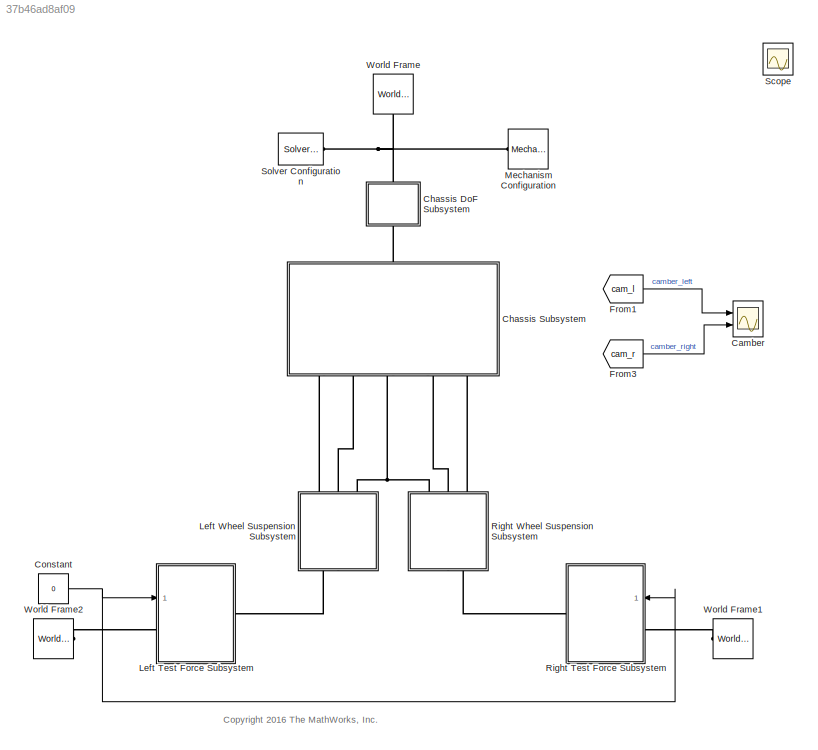
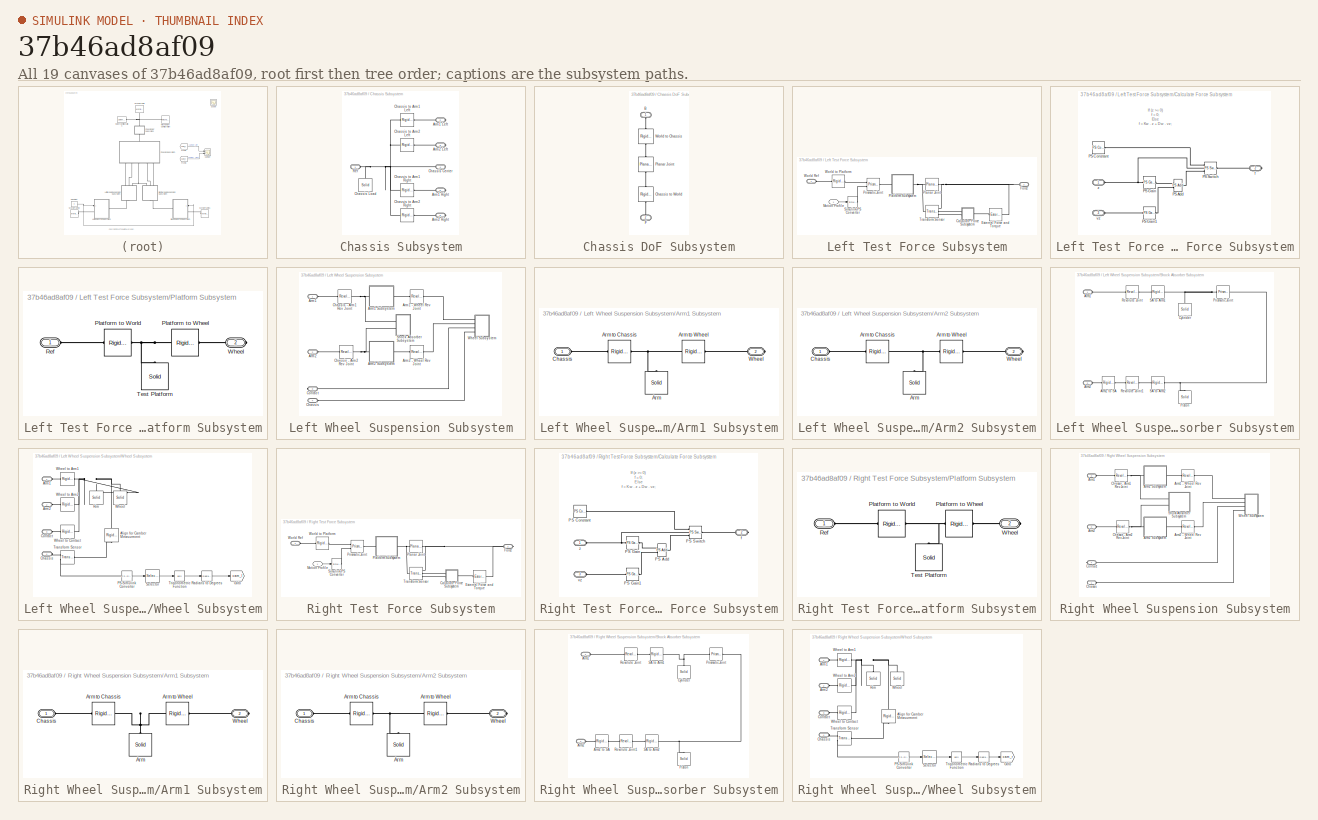
[diagram: thumbnail index - all 19 canvases of the model, root first then tree order]
MODEL slx_37b46ad8af09
KIND model
CONFIG AbsTol = auto
CONFIG FixedStep = auto
CONFIG MaxStep = auto
CONFIG MinStep = auto
CONFIG PreLoadFcn = suspension_optim_params\n\n
CONFIG RelTol = 1e-3
CONFIG SampleTimeConstraint = Unconstrained
CONFIG Solver = ode23t
CONFIG SolverMode = Auto
CONFIG SolverName = ode23t
CONFIG StartTime = 0.0
CONFIG StopTime = 3
BLOCK [Scope] Camber
  NumInputPorts = 2
  Ports = [2]
  ScopeSpecificationString = Simulink.scopes.TimeScopeBlockCfg('CurrentConfiguration', extmgr.ConfigurationSet(extmgr.Configuration('Core','General UI',true),extmgr.Configuration('Core','Source UI',true),extmgr.Configuration('Sources','WiredSimulink',true,'DataLoggingVariableName','ScopeData1'),extmgr.Configuration('Visuals','Time Domain',true,'SerializedDisplays',{struct('MinYLimReal','-0.45898','MaxYLimReal','4.13067','YLab...<+2031ch>
BLOCK [SubSystem] Chassis DoF Subsystem
  Ports = [0, 0, 0, 0, 0, 1, 1]
  RequestExecContextInheritance = off
  Variant = off
BLOCK [PMIOPort] Chassis DoF Subsystem/B
  Port = 1
  Side = Left
BLOCK [Reference] Chassis DoF Subsystem/Chassis to World  REF=sm_lib/Frames and
Transforms/Rigid
Transform
  Ports = [0, 0, 0, 0, 0, 1, 1]
  SourceBlock = sm_lib/Frames and\nTransforms/Rigid\nTransform
  SourceType = Rigid\nTransform
BLOCK [PMIOPort] Chassis DoF Subsystem/F
  Port = 2
  Side = Right
BLOCK [Reference] Chassis DoF Subsystem/Planar Joint  REF=sm_lib/Joints/Planar Joint
  Ports = [0, 0, 0, 0, 0, 1, 1]
  SourceBlock = sm_lib/Joints/Planar Joint
  SourceType = Planar Joint
BLOCK [Reference] Chassis DoF Subsystem/World to Chassis  REF=sm_lib/Frames and
Transforms/Rigid
Transform
  Ports = [0, 0, 0, 0, 0, 1, 1]
  SourceBlock = sm_lib/Frames and\nTransforms/Rigid\nTransform
  SourceType = Rigid\nTransform
BLOCK [SubSystem] Chassis Subsystem
  Ports = [0, 0, 0, 0, 0, 1, 5]
  RequestExecContextInheritance = off
  Variant = off
BLOCK [PMIOPort] Chassis Subsystem/Arm1 Left
  Port = 2
  Side = Right
BLOCK [PMIOPort] Chassis Subsystem/Arm1 Right
  Port = 5
  Side = Right
BLOCK [PMIOPort] Chassis Subsystem/Arm2 Left
  Port = 3
  Side = Right
BLOCK [PMIOPort] Chassis Subsystem/Arm2 Right
  Port = 6
  Side = Right
BLOCK [PMIOPort] Chassis Subsystem/Chassis Center
  Port = 4
  Side = Right
BLOCK [Reference] Chassis Subsystem/Chassis Load  REF=sm_lib/Body Elements/Solid
  Ports = [0, 0, 0, 0, 0, 0, 1]
  SourceBlock = sm_lib/Body Elements/Solid
  SourceType = Solid
BLOCK [Reference] Chassis Subsystem/Chassis to Arm1 Left  REF=sm_lib/Frames and
Transforms/Rigid
Transform
  Ports = [0, 0, 0, 0, 0, 1, 1]
  SourceBlock = sm_lib/Frames and\nTransforms/Rigid\nTransform
  SourceType = Rigid\nTransform
BLOCK [Reference] Chassis Subsystem/Chassis to Arm1 Right  REF=sm_lib/Frames and
Transforms/Rigid
Transform
  Ports = [0, 0, 0, 0, 0, 1, 1]
  SourceBlock = sm_lib/Frames and\nTransforms/Rigid\nTransform
  SourceType = Rigid\nTransform
BLOCK [Reference] Chassis Subsystem/Chassis to Arm2 Left  REF=sm_lib/Frames and
Transforms/Rigid
Transform
  Ports = [0, 0, 0, 0, 0, 1, 1]
  SourceBlock = sm_lib/Frames and\nTransforms/Rigid\nTransform
  SourceType = Rigid\nTransform
BLOCK [Reference] Chassis Subsystem/Chassis to Arm2 Right  REF=sm_lib/Frames and
Transforms/Rigid
Transform
  Ports = [0, 0, 0, 0, 0, 1, 1]
  SourceBlock = sm_lib/Frames and\nTransforms/Rigid\nTransform
  SourceType = Rigid\nTransform
BLOCK [PMIOPort] Chassis Subsystem/Ref
  Port = 1
  Side = Left
BLOCK [Constant] Constant
  Value = 0
BLOCK [From] From1
  GotoTag = cam_l
  TagVisibility = global
BLOCK [From] From3
  GotoTag = cam_r
  TagVisibility = global
BLOCK [SubSystem] Left Test Force Subsystem
  Ports = [1, 0, 0, 0, 0, 1, 1]
  RequestExecContextInheritance = off
  Variant = off
BLOCK [SubSystem] Left Test Force Subsystem/Calculate Force Subsystem
  Ports = [0, 0, 0, 0, 0, 2, 1]
  RequestExecContextInheritance = off
  Variant = off
BLOCK [Reference] Left Test Force Subsystem/Calculate Force Subsystem/PS Add  REF=fl_lib/Physical Signals/Functions/PS Add
  Ports = [0, 0, 0, 0, 0, 2, 1]
  SourceBlock = fl_lib/Physical Signals/Functions/PS Add
  SourceType = PS Add
BLOCK [Reference] Left Test Force Subsystem/Calculate Force Subsystem/PS Constant  REF=fl_lib/Physical Signals/Sources/PS Constant
  Ports = [0, 0, 0, 0, 0, 0, 1]
  SourceBlock = fl_lib/Physical Signals/Sources/PS Constant
  SourceType = PS Constant
BLOCK [Reference] Left Test Force Subsystem/Calculate Force Subsystem/PS Gain  REF=fl_lib/Physical Signals/Functions/PS Gain
  Ports = [0, 0, 0, 0, 0, 1, 1]
  SourceBlock = fl_lib/Physical Signals/Functions/PS Gain
  SourceType = PS Gain
BLOCK [Reference] Left Test Force Subsystem/Calculate Force Subsystem/PS Gain1  REF=fl_lib/Physical Signals/Functions/PS Gain
  Ports = [0, 0, 0, 0, 0, 1, 1]
  SourceBlock = fl_lib/Physical Signals/Functions/PS Gain
  SourceType = PS Gain
BLOCK [Reference] Left Test Force Subsystem/Calculate Force Subsystem/PS Switch  REF=fl_lib/Physical Signals/Nonlinear Operators/PS Switch
  Ports = [0, 0, 0, 0, 0, 3, 1]
  SourceBlock = fl_lib/Physical Signals/Nonlinear Operators/PS Switch
  SourceType = PS Switch
BLOCK [PMIOPort] Left Test Force Subsystem/Calculate Force Subsystem/f
  Port = 2
  Side = Right
BLOCK [PMIOPort] Left Test Force Subsystem/Calculate Force Subsystem/vz
  Port = 3
  Side = Left
BLOCK [PMIOPort] Left Test Force Subsystem/Calculate Force Subsystem/z
  Port = 1
  Side = Left
BLOCK [Reference] Left Test Force Subsystem/External Force and Torque  REF=sm_lib/Forces and
Torques/External Force
and Torque
  Ports = [0, 0, 0, 0, 0, 1, 1]
  SourceBlock = sm_lib/Forces and\nTorques/External Force\nand Torque
  SourceType = External Force\nand Torque
BLOCK [PMIOPort] Left Test Force Subsystem/Force
  Port = 2
  Side = Right
BLOCK [Inport] Left Test Force Subsystem/Motion Profile
  IconDisplay = Port number
BLOCK [Reference] Left Test Force Subsystem/Planar Joint  REF=sm_lib/Joints/Planar Joint
  Ports = [0, 0, 0, 0, 0, 1, 1]
  SourceBlock = sm_lib/Joints/Planar Joint
  SourceType = Planar Joint
BLOCK [SubSystem] Left Test Force Subsystem/Platform Subsystem
  Ports = [0, 0, 0, 0, 0, 1, 1]
  RequestExecContextInheritance = off
  Variant = off
BLOCK [Reference] Left Test Force Subsystem/Platform Subsystem/Platform to Wheel  REF=sm_lib/Frames and
Transforms/Rigid
Transform
  Ports = [0, 0, 0, 0, 0, 1, 1]
  SourceBlock = sm_lib/Frames and\nTransforms/Rigid\nTransform
  SourceType = Rigid\nTransform
BLOCK [Reference] Left Test Force Subsystem/Platform Subsystem/Platform to World  REF=sm_lib/Frames and
Transforms/Rigid
Transform
  Ports = [0, 0, 0, 0, 0, 1, 1]
  SourceBlock = sm_lib/Frames and\nTransforms/Rigid\nTransform
  SourceType = Rigid\nTransform
BLOCK [PMIOPort] Left Test Force Subsystem/Platform Subsystem/Ref
  Port = 1
  Side = Left
BLOCK [Reference] Left Test Force Subsystem/Platform Subsystem/Test Platform  REF=sm_lib/Body Elements/Solid
  Ports = [0, 0, 0, 0, 0, 0, 1]
  SourceBlock = sm_lib/Body Elements/Solid
  SourceType = Solid
BLOCK [PMIOPort] Left Test Force Subsystem/Platform Subsystem/Wheel
  Port = 2
  Side = Right
BLOCK [Reference] Left Test Force Subsystem/Prismatic Joint  REF=sm_lib/Joints/Prismatic
Joint
  Ports = [0, 0, 0, 0, 0, 2, 1]
  SourceBlock = sm_lib/Joints/Prismatic\nJoint
  SourceType = Prismatic\nJoint
BLOCK [Reference] Left Test Force Subsystem/Simulink-PS Converter  REF=nesl_utility/Simulink-PS
Converter
  Ports = [1, 0, 0, 0, 0, 0, 1]
  SourceBlock = nesl_utility/Simulink-PS\nConverter
  SourceType = Simulink-PS\nConverter
BLOCK [Reference] Left Test Force Subsystem/Transform Sensor  REF=sm_lib/Frames and
Transforms/Transform
Sensor
  Ports = [0, 0, 0, 0, 0, 1, 3]
  SourceBlock = sm_lib/Frames and\nTransforms/Transform\nSensor
  SourceType = Transform\nSensor
BLOCK [PMIOPort] Left Test Force Subsystem/World Ref
  Port = 1
  Side = Left
BLOCK [Reference] Left Test Force Subsystem/World to Platform  REF=sm_lib/Frames and
Transforms/Rigid
Transform
  Ports = [0, 0, 0, 0, 0, 1, 1]
  SourceBlock = sm_lib/Frames and\nTransforms/Rigid\nTransform
  SourceType = Rigid\nTransform
BLOCK [SubSystem] Left Wheel Suspension Subsystem
  Ports = [0, 0, 0, 0, 0, 3, 1]
  RequestExecContextInheritance = off
  Variant = off
BLOCK [PMIOPort] Left Wheel Suspension Subsystem/Arm1
  Port = 1
  Side = Left
BLOCK [Reference] Left Wheel Suspension Subsystem/Arm1 - Wheel Rev Joint  REF=sm_lib/Joints/Revolute Joint
  Ports = [0, 0, 0, 0, 0, 1, 1]
  SourceBlock = sm_lib/Joints/Revolute Joint
  SourceType = Revolute Joint
BLOCK [SubSystem] Left Wheel Suspension Subsystem/Arm1 Subsystem
  Ports = [0, 0, 0, 0, 0, 1, 1]
  RequestExecContextInheritance = off
  Variant = off
BLOCK [Reference] Left Wheel Suspension Subsystem/Arm1 Subsystem/Arm  REF=sm_lib/Body Elements/Solid
  Ports = [0, 0, 0, 0, 0, 0, 1]
  SourceBlock = sm_lib/Body Elements/Solid
  SourceType = Solid
BLOCK [Reference] Left Wheel Suspension Subsystem/Arm1 Subsystem/Arm to Chassis  REF=sm_lib/Frames and
Transforms/Rigid
Transform
  Ports = [0, 0, 0, 0, 0, 1, 1]
  SourceBlock = sm_lib/Frames and\nTransforms/Rigid\nTransform
  SourceType = Rigid\nTransform
BLOCK [Reference] Left Wheel Suspension Subsystem/Arm1 Subsystem/Arm to Wheel  REF=sm_lib/Frames and
Transforms/Rigid
Transform
  Ports = [0, 0, 0, 0, 0, 1, 1]
  SourceBlock = sm_lib/Frames and\nTransforms/Rigid\nTransform
  SourceType = Rigid\nTransform
BLOCK [PMIOPort] Left Wheel Suspension Subsystem/Arm1 Subsystem/Chassis
  Port = 1
  Side = Left
BLOCK [PMIOPort] Left Wheel Suspension Subsystem/Arm1 Subsystem/Wheel
  Port = 2
  Side = Right
BLOCK [PMIOPort] Left Wheel Suspension Subsystem/Arm2
  Port = 2
  Side = Left
BLOCK [Reference] Left Wheel Suspension Subsystem/Arm2 - Wheel Rev Joint  REF=sm_lib/Joints/Revolute Joint
  Ports = [0, 0, 0, 0, 0, 1, 1]
  SourceBlock = sm_lib/Joints/Revolute Joint
  SourceType = Revolute Joint
BLOCK [SubSystem] Left Wheel Suspension Subsystem/Arm2 Subsystem
  Ports = [0, 0, 0, 0, 0, 1, 1]
  RequestExecContextInheritance = off
  Variant = off
BLOCK [Reference] Left Wheel Suspension Subsystem/Arm2 Subsystem/Arm  REF=sm_lib/Body Elements/Solid
  Ports = [0, 0, 0, 0, 0, 0, 1]
  SourceBlock = sm_lib/Body Elements/Solid
  SourceType = Solid
BLOCK [Reference] Left Wheel Suspension Subsystem/Arm2 Subsystem/Arm to Chassis  REF=sm_lib/Frames and
Transforms/Rigid
Transform
  Ports = [0, 0, 0, 0, 0, 1, 1]
  SourceBlock = sm_lib/Frames and\nTransforms/Rigid\nTransform
  SourceType = Rigid\nTransform
BLOCK [Reference] Left Wheel Suspension Subsystem/Arm2 Subsystem/Arm to Wheel  REF=sm_lib/Frames and
Transforms/Rigid
Transform
  Ports = [0, 0, 0, 0, 0, 1, 1]
  SourceBlock = sm_lib/Frames and\nTransforms/Rigid\nTransform
  SourceType = Rigid\nTransform
BLOCK [PMIOPort] Left Wheel Suspension Subsystem/Arm2 Subsystem/Chassis
  Port = 1
  Side = Left
BLOCK [PMIOPort] Left Wheel Suspension Subsystem/Arm2 Subsystem/Wheel
  Port = 2
  Side = Right
BLOCK [PMIOPort] Left Wheel Suspension Subsystem/Chassis
  Port = 4
  Side = Left
BLOCK [Reference] Left Wheel Suspension Subsystem/Chassis - Arm1 Rev Joint  REF=sm_lib/Joints/Revolute Joint
  Ports = [0, 0, 0, 0, 0, 1, 1]
  SourceBlock = sm_lib/Joints/Revolute Joint
  SourceType = Revolute Joint
BLOCK [Reference] Left Wheel Suspension Subsystem/Chassis - Arm2 Rev Joint  REF=sm_lib/Joints/Revolute Joint
  Ports = [0, 0, 0, 0, 0, 1, 1]
  SourceBlock = sm_lib/Joints/Revolute Joint
  SourceType = Revolute Joint
BLOCK [PMIOPort] Left Wheel Suspension Subsystem/Contact
  Port = 3
  Side = Right
BLOCK [SubSystem] Left Wheel Suspension Subsystem/Shock Absorber Subsystem
  Ports = [0, 0, 0, 0, 0, 2]
  RequestExecContextInheritance = off
  Variant = off
BLOCK [PMIOPort] Left Wheel Suspension Subsystem/Shock Absorber Subsystem/Arm1
  Port = 1
  Side = Left
BLOCK [PMIOPort] Left Wheel Suspension Subsystem/Shock Absorber Subsystem/Arm2
  Port = 2
  Side = Left
BLOCK [Reference] Left Wheel Suspension Subsystem/Shock Absorber Subsystem/Arm2 to SA  REF=sm_lib/Frames and
Transforms/Rigid
Transform
  Ports = [0, 0, 0, 0, 0, 1, 1]
  SourceBlock = sm_lib/Frames and\nTransforms/Rigid\nTransform
  SourceType = Rigid\nTransform
BLOCK [Reference] Left Wheel Suspension Subsystem/Shock Absorber Subsystem/Cylinder  REF=sm_lib/Body Elements/Solid
  Ports = [0, 0, 0, 0, 0, 0, 1]
  SourceBlock = sm_lib/Body Elements/Solid
  SourceType = Solid
BLOCK [Reference] Left Wheel Suspension Subsystem/Shock Absorber Subsystem/Piston  REF=sm_lib/Body Elements/Solid
  Ports = [0, 0, 0, 0, 0, 0, 1]
  SourceBlock = sm_lib/Body Elements/Solid
  SourceType = Solid
BLOCK [Reference] Left Wheel Suspension Subsystem/Shock Absorber Subsystem/Prismatic Joint  REF=sm_lib/Joints/Prismatic
Joint
  Ports = [0, 0, 0, 0, 0, 1, 1]
  SourceBlock = sm_lib/Joints/Prismatic\nJoint
  SourceType = Prismatic\nJoint
BLOCK [Reference] Left Wheel Suspension Subsystem/Shock Absorber Subsystem/Revolute Joint  REF=sm_lib/Joints/Revolute Joint
  Ports = [0, 0, 0, 0, 0, 1, 1]
  SourceBlock = sm_lib/Joints/Revolute Joint
  SourceType = Revolute Joint
BLOCK [Reference] Left Wheel Suspension Subsystem/Shock Absorber Subsystem/Revolute Joint1  REF=sm_lib/Joints/Revolute Joint
  Ports = [0, 0, 0, 0, 0, 1, 1]
  SourceBlock = sm_lib/Joints/Revolute Joint
  SourceType = Revolute Joint
BLOCK [Reference] Left Wheel Suspension Subsystem/Shock Absorber Subsystem/SA to Arm1  REF=sm_lib/Frames and
Transforms/Rigid
Transform
  Ports = [0, 0, 0, 0, 0, 1, 1]
  SourceBlock = sm_lib/Frames and\nTransforms/Rigid\nTransform
  SourceType = Rigid\nTransform
BLOCK [Reference] Left Wheel Suspension Subsystem/Shock Absorber Subsystem/SA to Arm2  REF=sm_lib/Frames and
Transforms/Rigid
Transform
  Ports = [0, 0, 0, 0, 0, 1, 1]
  SourceBlock = sm_lib/Frames and\nTransforms/Rigid\nTransform
  SourceType = Rigid\nTransform
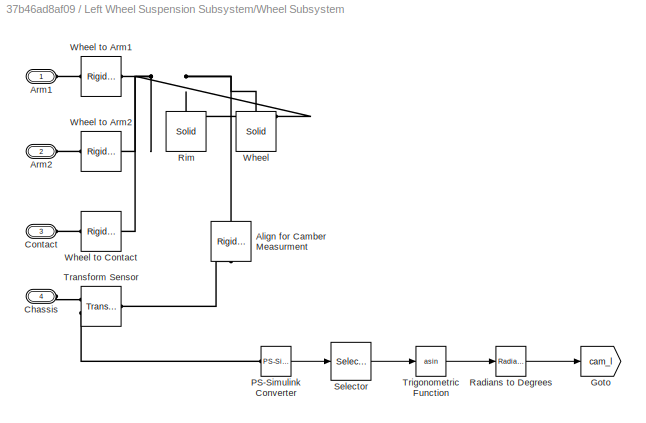
BLOCK [SubSystem] Left Wheel Suspension Subsystem/Wheel Subsystem
  Ports = [0, 0, 0, 0, 0, 4]
  RequestExecContextInheritance = off
  Variant = off
BLOCK [Reference] Left Wheel Suspension Subsystem/Wheel Subsystem/Align for Camber Measurment  REF=sm_lib/Frames and
Transforms/Rigid
Transform
  Ports = [0, 0, 0, 0, 0, 1, 1]
  SourceBlock = sm_lib/Frames and\nTransforms/Rigid\nTransform
  SourceType = Rigid\nTransform
BLOCK [PMIOPort] Left Wheel Suspension Subsystem/Wheel Subsystem/Arm1
  Port = 1
  Side = Left
BLOCK [PMIOPort] Left Wheel Suspension Subsystem/Wheel Subsystem/Arm2
  Port = 2
  Side = Left
BLOCK [PMIOPort] Left Wheel Suspension Subsystem/Wheel Subsystem/Chassis
  Port = 4
  Side = Left
BLOCK [PMIOPort] Left Wheel Suspension Subsystem/Wheel Subsystem/Contact
  Port = 3
  Side = Left
BLOCK [Goto] Left Wheel Suspension Subsystem/Wheel Subsystem/Goto
  GotoTag = cam_l
  TagVisibility = global
BLOCK [Reference] Left Wheel Suspension Subsystem/Wheel Subsystem/PS-Simulink Converter  REF=nesl_utility/PS-Simulink
Converter
  Ports = [0, 1, 0, 0, 0, 1]
  SourceBlock = nesl_utility/PS-Simulink\nConverter
  SourceType = PS-Simulink\nConverter
BLOCK [Reference] Left Wheel Suspension Subsystem/Wheel Subsystem/Radians to Degrees  REF=simulink_extras/Transformations/Radians
to Degrees
  Ports = [1, 1]
  SourceBlock = simulink_extras/Transformations/Radians\nto Degrees
  SourceType = RadiansToDegrees
BLOCK [Reference] Left Wheel Suspension Subsystem/Wheel Subsystem/Rim  REF=sm_lib/Body Elements/Solid
  Ports = [0, 0, 0, 0, 0, 0, 1]
  SourceBlock = sm_lib/Body Elements/Solid
  SourceType = Solid
BLOCK [Selector] Left Wheel Suspension Subsystem/Wheel Subsystem/Selector
  IndexOptions = Index vector (dialog),Index vector (dialog)
  Indices = 2,3
  InputPortWidth = 3
  NumberOfDimensions = 2
  OutputSizes = 1,1
  Ports = [1, 1]
BLOCK [Reference] Left Wheel Suspension Subsystem/Wheel Subsystem/Transform Sensor  REF=sm_lib/Frames and
Transforms/Transform
Sensor
  Ports = [0, 0, 0, 0, 0, 1, 2]
  SourceBlock = sm_lib/Frames and\nTransforms/Transform\nSensor
  SourceType = Transform\nSensor
BLOCK [Trigonometry] Left Wheel Suspension Subsystem/Wheel Subsystem/Trigonometric Function
  Operator = asin
  Ports = [1, 1]
BLOCK [Reference] Left Wheel Suspension Subsystem/Wheel Subsystem/Wheel  REF=sm_lib/Body Elements/Solid
  Ports = [0, 0, 0, 0, 0, 0, 1]
  SourceBlock = sm_lib/Body Elements/Solid
  SourceType = Solid
BLOCK [Reference] Left Wheel Suspension Subsystem/Wheel Subsystem/Wheel to Arm1  REF=sm_lib/Frames and
Transforms/Rigid
Transform
  Ports = [0, 0, 0, 0, 0, 1, 1]
  SourceBlock = sm_lib/Frames and\nTransforms/Rigid\nTransform
  SourceType = Rigid\nTransform
BLOCK [Reference] Left Wheel Suspension Subsystem/Wheel Subsystem/Wheel to Arm2  REF=sm_lib/Frames and
Transforms/Rigid
Transform
  Ports = [0, 0, 0, 0, 0, 1, 1]
  SourceBlock = sm_lib/Frames and\nTransforms/Rigid\nTransform
  SourceType = Rigid\nTransform
BLOCK [Reference] Left Wheel Suspension Subsystem/Wheel Subsystem/Wheel to Contact  REF=sm_lib/Frames and
Transforms/Rigid
Transform
  Ports = [0, 0, 0, 0, 0, 1, 1]
  SourceBlock = sm_lib/Frames and\nTransforms/Rigid\nTransform
  SourceType = Rigid\nTransform
BLOCK [Reference] Mechanism Configuration  REF=sm_lib/Utilities/Mechanism
Configuration
  Ports = [0, 0, 0, 0, 0, 0, 1]
  SourceBlock = sm_lib/Utilities/Mechanism\nConfiguration
  SourceType = Mechanism\nConfiguration
BLOCK [SubSystem] Right Test Force Subsystem
  Ports = [1, 0, 0, 0, 0, 1, 1]
  RequestExecContextInheritance = off
  Variant = off
BLOCK [SubSystem] Right Test Force Subsystem/Calculate Force Subsystem
  Ports = [0, 0, 0, 0, 0, 2, 1]
  RequestExecContextInheritance = off
  Variant = off
BLOCK [Reference] Right Test Force Subsystem/Calculate Force Subsystem/PS Add  REF=fl_lib/Physical Signals/Functions/PS Add
  Ports = [0, 0, 0, 0, 0, 2, 1]
  SourceBlock = fl_lib/Physical Signals/Functions/PS Add
  SourceType = PS Add
BLOCK [Reference] Right Test Force Subsystem/Calculate Force Subsystem/PS Constant  REF=fl_lib/Physical Signals/Sources/PS Constant
  Ports = [0, 0, 0, 0, 0, 0, 1]
  SourceBlock = fl_lib/Physical Signals/Sources/PS Constant
  SourceType = PS Constant
BLOCK [Reference] Right Test Force Subsystem/Calculate Force Subsystem/PS Gain  REF=fl_lib/Physical Signals/Functions/PS Gain
  Ports = [0, 0, 0, 0, 0, 1, 1]
  SourceBlock = fl_lib/Physical Signals/Functions/PS Gain
  SourceType = PS Gain
BLOCK [Reference] Right Test Force Subsystem/Calculate Force Subsystem/PS Gain1  REF=fl_lib/Physical Signals/Functions/PS Gain
  Ports = [0, 0, 0, 0, 0, 1, 1]
  SourceBlock = fl_lib/Physical Signals/Functions/PS Gain
  SourceType = PS Gain
BLOCK [Reference] Right Test Force Subsystem/Calculate Force Subsystem/PS Switch  REF=fl_lib/Physical Signals/Nonlinear Operators/PS Switch
  Ports = [0, 0, 0, 0, 0, 3, 1]
  SourceBlock = fl_lib/Physical Signals/Nonlinear Operators/PS Switch
  SourceType = PS Switch
BLOCK [PMIOPort] Right Test Force Subsystem/Calculate Force Subsystem/f
  Port = 2
  Side = Right
BLOCK [PMIOPort] Right Test Force Subsystem/Calculate Force Subsystem/vz
  Port = 3
  Side = Left
BLOCK [PMIOPort] Right Test Force Subsystem/Calculate Force Subsystem/z
  Port = 1
  Side = Left
BLOCK [Reference] Right Test Force Subsystem/External Force and Torque  REF=sm_lib/Forces and
Torques/External Force
and Torque
  Ports = [0, 0, 0, 0, 0, 1, 1]
  SourceBlock = sm_lib/Forces and\nTorques/External Force\nand Torque
  SourceType = External Force\nand Torque
BLOCK [PMIOPort] Right Test Force Subsystem/Force
  Port = 2
  Side = Right
BLOCK [Inport] Right Test Force Subsystem/Motion Profile
  IconDisplay = Port number
BLOCK [Reference] Right Test Force Subsystem/Planar Joint  REF=sm_lib/Joints/Planar Joint
  Ports = [0, 0, 0, 0, 0, 1, 1]
  SourceBlock = sm_lib/Joints/Planar Joint
  SourceType = Planar Joint
BLOCK [SubSystem] Right Test Force Subsystem/Platform Subsystem
  Ports = [0, 0, 0, 0, 0, 1, 1]
  RequestExecContextInheritance = off
  Variant = off
BLOCK [Reference] Right Test Force Subsystem/Platform Subsystem/Platform to Wheel  REF=sm_lib/Frames and
Transforms/Rigid
Transform
  Ports = [0, 0, 0, 0, 0, 1, 1]
  SourceBlock = sm_lib/Frames and\nTransforms/Rigid\nTransform
  SourceType = Rigid\nTransform
BLOCK [Reference] Right Test Force Subsystem/Platform Subsystem/Platform to World  REF=sm_lib/Frames and
Transforms/Rigid
Transform
  Ports = [0, 0, 0, 0, 0, 1, 1]
  SourceBlock = sm_lib/Frames and\nTransforms/Rigid\nTransform
  SourceType = Rigid\nTransform
BLOCK [PMIOPort] Right Test Force Subsystem/Platform Subsystem/Ref
  Port = 1
  Side = Left
BLOCK [Reference] Right Test Force Subsystem/Platform Subsystem/Test Platform  REF=sm_lib/Body Elements/Solid
  Ports = [0, 0, 0, 0, 0, 0, 1]
  SourceBlock = sm_lib/Body Elements/Solid
  SourceType = Solid
BLOCK [PMIOPort] Right Test Force Subsystem/Platform Subsystem/Wheel
  Port = 2
  Side = Right
BLOCK [Reference] Right Test Force Subsystem/Prismatic Joint  REF=sm_lib/Joints/Prismatic
Joint
  Ports = [0, 0, 0, 0, 0, 2, 1]
  SourceBlock = sm_lib/Joints/Prismatic\nJoint
  SourceType = Prismatic\nJoint
BLOCK [Reference] Right Test Force Subsystem/Simulink-PS Converter  REF=nesl_utility/Simulink-PS
Converter
  Ports = [1, 0, 0, 0, 0, 0, 1]
  SourceBlock = nesl_utility/Simulink-PS\nConverter
  SourceType = Simulink-PS\nConverter
BLOCK [Reference] Right Test Force Subsystem/Transform Sensor  REF=sm_lib/Frames and
Transforms/Transform
Sensor
  Ports = [0, 0, 0, 0, 0, 1, 3]
  SourceBlock = sm_lib/Frames and\nTransforms/Transform\nSensor
  SourceType = Transform\nSensor
BLOCK [PMIOPort] Right Test Force Subsystem/World Ref
  Port = 1
  Side = Left
BLOCK [Reference] Right Test Force Subsystem/World to Platform  REF=sm_lib/Frames and
Transforms/Rigid
Transform
  Ports = [0, 0, 0, 0, 0, 1, 1]
  SourceBlock = sm_lib/Frames and\nTransforms/Rigid\nTransform
  SourceType = Rigid\nTransform
BLOCK [SubSystem] Right Wheel Suspension Subsystem
  Ports = [0, 0, 0, 0, 0, 3, 1]
  RequestExecContextInheritance = off
  Variant = off
BLOCK [PMIOPort] Right Wheel Suspension Subsystem/Arm1
  Port = 2
  Side = Left
BLOCK [Reference] Right Wheel Suspension Subsystem/Arm1 - Wheel Rev Joint  REF=sm_lib/Joints/Revolute Joint
  Ports = [0, 0, 0, 0, 0, 1, 1]
  SourceBlock = sm_lib/Joints/Revolute Joint
  SourceType = Revolute Joint
BLOCK [SubSystem] Right Wheel Suspension Subsystem/Arm1 Subsystem
  Ports = [0, 0, 0, 0, 0, 1, 1]
  RequestExecContextInheritance = off
  Variant = off
BLOCK [Reference] Right Wheel Suspension Subsystem/Arm1 Subsystem/Arm  REF=sm_lib/Body Elements/Solid
  Ports = [0, 0, 0, 0, 0, 0, 1]
  SourceBlock = sm_lib/Body Elements/Solid
  SourceType = Solid
BLOCK [Reference] Right Wheel Suspension Subsystem/Arm1 Subsystem/Arm to Chassis  REF=sm_lib/Frames and
Transforms/Rigid
Transform
  Ports = [0, 0, 0, 0, 0, 1, 1]
  SourceBlock = sm_lib/Frames and\nTransforms/Rigid\nTransform
  SourceType = Rigid\nTransform
BLOCK [Reference] Right Wheel Suspension Subsystem/Arm1 Subsystem/Arm to Wheel  REF=sm_lib/Frames and
Transforms/Rigid
Transform
  Ports = [0, 0, 0, 0, 0, 1, 1]
  SourceBlock = sm_lib/Frames and\nTransforms/Rigid\nTransform
  SourceType = Rigid\nTransform
BLOCK [PMIOPort] Right Wheel Suspension Subsystem/Arm1 Subsystem/Chassis
  Port = 1
  Side = Left
BLOCK [PMIOPort] Right Wheel Suspension Subsystem/Arm1 Subsystem/Wheel
  Port = 2
  Side = Right
BLOCK [PMIOPort] Right Wheel Suspension Subsystem/Arm2
  Port = 3
  Side = Left
BLOCK [Reference] Right Wheel Suspension Subsystem/Arm2 - Wheel Rev Joint  REF=sm_lib/Joints/Revolute Joint
  Ports = [0, 0, 0, 0, 0, 1, 1]
  SourceBlock = sm_lib/Joints/Revolute Joint
  SourceType = Revolute Joint
BLOCK [SubSystem] Right Wheel Suspension Subsystem/Arm2 Subsystem
  Ports = [0, 0, 0, 0, 0, 1, 1]
  RequestExecContextInheritance = off
  Variant = off
BLOCK [Reference] Right Wheel Suspension Subsystem/Arm2 Subsystem/Arm  REF=sm_lib/Body Elements/Solid
  Ports = [0, 0, 0, 0, 0, 0, 1]
  SourceBlock = sm_lib/Body Elements/Solid
  SourceType = Solid
BLOCK [Reference] Right Wheel Suspension Subsystem/Arm2 Subsystem/Arm to Chassis  REF=sm_lib/Frames and
Transforms/Rigid
Transform
  Ports = [0, 0, 0, 0, 0, 1, 1]
  SourceBlock = sm_lib/Frames and\nTransforms/Rigid\nTransform
  SourceType = Rigid\nTransform
BLOCK [Reference] Right Wheel Suspension Subsystem/Arm2 Subsystem/Arm to Wheel  REF=sm_lib/Frames and
Transforms/Rigid
Transform
  Ports = [0, 0, 0, 0, 0, 1, 1]
  SourceBlock = sm_lib/Frames and\nTransforms/Rigid\nTransform
  SourceType = Rigid\nTransform
BLOCK [PMIOPort] Right Wheel Suspension Subsystem/Arm2 Subsystem/Chassis
  Port = 1
  Side = Left
BLOCK [PMIOPort] Right Wheel Suspension Subsystem/Arm2 Subsystem/Wheel
  Port = 2
  Side = Right
BLOCK [PMIOPort] Right Wheel Suspension Subsystem/Chassis
  Port = 1
  Side = Left
BLOCK [Reference] Right Wheel Suspension Subsystem/Chassis - Arm1 Rev Joint  REF=sm_lib/Joints/Revolute Joint
  Ports = [0, 0, 0, 0, 0, 1, 1]
  SourceBlock = sm_lib/Joints/Revolute Joint
  SourceType = Revolute Joint
BLOCK [Reference] Right Wheel Suspension Subsystem/Chassis - Arm2 Rev Joint  REF=sm_lib/Joints/Revolute Joint
  Ports = [0, 0, 0, 0, 0, 1, 1]
  SourceBlock = sm_lib/Joints/Revolute Joint
  SourceType = Revolute Joint
BLOCK [PMIOPort] Right Wheel Suspension Subsystem/Contact
  Port = 4
  Side = Right
BLOCK [SubSystem] Right Wheel Suspension Subsystem/Shock Absorber Subsystem
  Ports = [0, 0, 0, 0, 0, 2]
  RequestExecContextInheritance = off
  Variant = off
BLOCK [PMIOPort] Right Wheel Suspension Subsystem/Shock Absorber Subsystem/Arm1
  Port = 1
  Side = Left
BLOCK [PMIOPort] Right Wheel Suspension Subsystem/Shock Absorber Subsystem/Arm2
  Port = 2
  Side = Left
BLOCK [Reference] Right Wheel Suspension Subsystem/Shock Absorber Subsystem/Arm2 to SA  REF=sm_lib/Frames and
Transforms/Rigid
Transform
  Ports = [0, 0, 0, 0, 0, 1, 1]
  SourceBlock = sm_lib/Frames and\nTransforms/Rigid\nTransform
  SourceType = Rigid\nTransform
BLOCK [Reference] Right Wheel Suspension Subsystem/Shock Absorber Subsystem/Cylinder  REF=sm_lib/Body Elements/Solid
  Ports = [0, 0, 0, 0, 0, 0, 1]
  SourceBlock = sm_lib/Body Elements/Solid
  SourceType = Solid
BLOCK [Reference] Right Wheel Suspension Subsystem/Shock Absorber Subsystem/Piston  REF=sm_lib/Body Elements/Solid
  Ports = [0, 0, 0, 0, 0, 0, 1]
  SourceBlock = sm_lib/Body Elements/Solid
  SourceType = Solid
BLOCK [Reference] Right Wheel Suspension Subsystem/Shock Absorber Subsystem/Prismatic Joint  REF=sm_lib/Joints/Prismatic
Joint
  Ports = [0, 0, 0, 0, 0, 1, 1]
  SourceBlock = sm_lib/Joints/Prismatic\nJoint
  SourceType = Prismatic\nJoint
BLOCK [Reference] Right Wheel Suspension Subsystem/Shock Absorber Subsystem/Revolute Joint  REF=sm_lib/Joints/Revolute Joint
  Ports = [0, 0, 0, 0, 0, 1, 1]
  SourceBlock = sm_lib/Joints/Revolute Joint
  SourceType = Revolute Joint
BLOCK [Reference] Right Wheel Suspension Subsystem/Shock Absorber Subsystem/Revolute Joint1  REF=sm_lib/Joints/Revolute Joint
  Ports = [0, 0, 0, 0, 0, 1, 1]
  SourceBlock = sm_lib/Joints/Revolute Joint
  SourceType = Revolute Joint
BLOCK [Reference] Right Wheel Suspension Subsystem/Shock Absorber Subsystem/SA to Arm1  REF=sm_lib/Frames and
Transforms/Rigid
Transform
  Ports = [0, 0, 0, 0, 0, 1, 1]
  SourceBlock = sm_lib/Frames and\nTransforms/Rigid\nTransform
  SourceType = Rigid\nTransform
BLOCK [Reference] Right Wheel Suspension Subsystem/Shock Absorber Subsystem/SA to Arm2  REF=sm_lib/Frames and
Transforms/Rigid
Transform
  Ports = [0, 0, 0, 0, 0, 1, 1]
  SourceBlock = sm_lib/Frames and\nTransforms/Rigid\nTransform
  SourceType = Rigid\nTransform
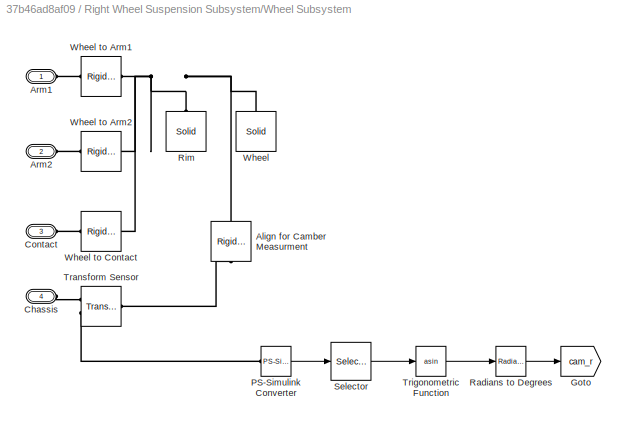
BLOCK [SubSystem] Right Wheel Suspension Subsystem/Wheel Subsystem
  Ports = [0, 0, 0, 0, 0, 4]
  RequestExecContextInheritance = off
  Variant = off
BLOCK [Reference] Right Wheel Suspension Subsystem/Wheel Subsystem/Align for Camber Measurment  REF=sm_lib/Frames and
Transforms/Rigid
Transform
  Ports = [0, 0, 0, 0, 0, 1, 1]
  SourceBlock = sm_lib/Frames and\nTransforms/Rigid\nTransform
  SourceType = Rigid\nTransform
BLOCK [PMIOPort] Right Wheel Suspension Subsystem/Wheel Subsystem/Arm1
  Port = 1
  Side = Left
BLOCK [PMIOPort] Right Wheel Suspension Subsystem/Wheel Subsystem/Arm2
  Port = 2
  Side = Left
BLOCK [PMIOPort] Right Wheel Suspension Subsystem/Wheel Subsystem/Chassis
  Port = 4
  Side = Left
BLOCK [PMIOPort] Right Wheel Suspension Subsystem/Wheel Subsystem/Contact
  Port = 3
  Side = Left
BLOCK [Goto] Right Wheel Suspension Subsystem/Wheel Subsystem/Goto
  GotoTag = cam_r
  TagVisibility = global
BLOCK [Reference] Right Wheel Suspension Subsystem/Wheel Subsystem/PS-Simulink Converter  REF=nesl_utility/PS-Simulink
Converter
  Ports = [0, 1, 0, 0, 0, 1]
  SourceBlock = nesl_utility/PS-Simulink\nConverter
  SourceType = PS-Simulink\nConverter
BLOCK [Reference] Right Wheel Suspension Subsystem/Wheel Subsystem/Radians to Degrees  REF=simulink_extras/Transformations/Radians
to Degrees
  Ports = [1, 1]
  SourceBlock = simulink_extras/Transformations/Radians\nto Degrees
  SourceType = RadiansToDegrees
BLOCK [Reference] Right Wheel Suspension Subsystem/Wheel Subsystem/Rim  REF=sm_lib/Body Elements/Solid
  Ports = [0, 0, 0, 0, 0, 0, 1]
  SourceBlock = sm_lib/Body Elements/Solid
  SourceType = Solid
BLOCK [Selector] Right Wheel Suspension Subsystem/Wheel Subsystem/Selector
  IndexOptions = Index vector (dialog),Index vector (dialog)
  Indices = 2,3
  InputPortWidth = 3
  NumberOfDimensions = 2
  OutputSizes = 1,1
  Ports = [1, 1]
BLOCK [Reference] Right Wheel Suspension Subsystem/Wheel Subsystem/Transform Sensor  REF=sm_lib/Frames and
Transforms/Transform
Sensor
  Ports = [0, 0, 0, 0, 0, 1, 2]
  SourceBlock = sm_lib/Frames and\nTransforms/Transform\nSensor
  SourceType = Transform\nSensor
BLOCK [Trigonometry] Right Wheel Suspension Subsystem/Wheel Subsystem/Trigonometric Function
  Operator = asin
  Ports = [1, 1]
BLOCK [Reference] Right Wheel Suspension Subsystem/Wheel Subsystem/Wheel  REF=sm_lib/Body Elements/Solid
  Ports = [0, 0, 0, 0, 0, 0, 1]
  SourceBlock = sm_lib/Body Elements/Solid
  SourceType = Solid
BLOCK [Reference] Right Wheel Suspension Subsystem/Wheel Subsystem/Wheel to Arm1  REF=sm_lib/Frames and
Transforms/Rigid
Transform
  Ports = [0, 0, 0, 0, 0, 1, 1]
  SourceBlock = sm_lib/Frames and\nTransforms/Rigid\nTransform
  SourceType = Rigid\nTransform
BLOCK [Reference] Right Wheel Suspension Subsystem/Wheel Subsystem/Wheel to Arm2  REF=sm_lib/Frames and
Transforms/Rigid
Transform
  Ports = [0, 0, 0, 0, 0, 1, 1]
  SourceBlock = sm_lib/Frames and\nTransforms/Rigid\nTransform
  SourceType = Rigid\nTransform
BLOCK [Reference] Right Wheel Suspension Subsystem/Wheel Subsystem/Wheel to Contact  REF=sm_lib/Frames and
Transforms/Rigid
Transform
  Ports = [0, 0, 0, 0, 0, 1, 1]
  SourceBlock = sm_lib/Frames and\nTransforms/Rigid\nTransform
  SourceType = Rigid\nTransform
BLOCK [Scope] Scope
  IOType = viewer
  Ports = []
  ScopeSpecificationString = Simulink.scopes.TimeScopeBlockCfg('CurrentConfiguration', extmgr.ConfigurationSet(extmgr.Configuration('Core','General UI',true),extmgr.Configuration('Core','Source UI',true),extmgr.Configuration('Sources','WiredSimulink',true,'DataLoggingVariableName','ScopeData1'),extmgr.Configuration('Visuals','Time Domain',true,'SerializedDisplays',{struct('MinYLimReal','-0.78849','MaxYLimReal','-0.58849','YLa...<+1367ch>
BLOCK [Reference] Solver Configuration  REF=nesl_utility/Solver
Configuration
  Ports = [0, 0, 0, 0, 0, 0, 1]
  SourceBlock = nesl_utility/Solver\nConfiguration
  SourceType = Solver\nConfiguration
BLOCK [Reference] World Frame  REF=sm_lib/Frames and
Transforms/World Frame
  Ports = [0, 0, 0, 0, 0, 0, 1]
  SourceBlock = sm_lib/Frames and\nTransforms/World Frame
  SourceType = World Frame
BLOCK [Reference] World Frame1  REF=sm_lib/Frames and
Transforms/World Frame
  Ports = [0, 0, 0, 0, 0, 0, 1]
  SourceBlock = sm_lib/Frames and\nTransforms/World Frame
  SourceType = World Frame
BLOCK [Reference] World Frame2  REF=sm_lib/Frames and
Transforms/World Frame
  Ports = [0, 0, 0, 0, 0, 0, 1]
  SourceBlock = sm_lib/Frames and\nTransforms/World Frame
  SourceType = World Frame
ANNOTATION (root): <copyright redacted>
ANNOTATION Left Test Force Subsystem/Calculate Force Subsystem: If (z >= 0) f = 0; Else f = Kw . z + Dw . vz;
ANNOTATION Right Test Force Subsystem/Calculate Force Subsystem: If (z >= 0) f = 0; Else f = Kw . z + Dw . vz;
NET Constant:1 -> Left Test Force Subsystem:1, Right Test Force Subsystem:1
LINE From1:1 -> Camber:1
LINE From3:1 -> Camber:2
LINE Left Test Force Subsystem/Motion Profile:1 -> Left Test Force Subsystem/Simulink-PS Converter:1
LINE Left Wheel Suspension Subsystem/Wheel Subsystem/PS-Simulink Converter:1 -> Left Wheel Suspension Subsystem/Wheel Subsystem/Selector:1
LINE Left Wheel Suspension Subsystem/Wheel Subsystem/Radians to Degrees:1 -> Left Wheel Suspension Subsystem/Wheel Subsystem/Goto:1
LINE Left Wheel Suspension Subsystem/Wheel Subsystem/Selector:1 -> Left Wheel Suspension Subsystem/Wheel Subsystem/Trigonometric Function:1
LINE Left Wheel Suspension Subsystem/Wheel Subsystem/Trigonometric Function:1 -> Left Wheel Suspension Subsystem/Wheel Subsystem/Radians to Degrees:1
LINE Right Test Force Subsystem/Motion Profile:1 -> Right Test Force Subsystem/Simulink-PS Converter:1
LINE Right Wheel Suspension Subsystem/Wheel Subsystem/PS-Simulink Converter:1 -> Right Wheel Suspension Subsystem/Wheel Subsystem/Selector:1
LINE Right Wheel Suspension Subsystem/Wheel Subsystem/Radians to Degrees:1 -> Right Wheel Suspension Subsystem/Wheel Subsystem/Goto:1
LINE Right Wheel Suspension Subsystem/Wheel Subsystem/Selector:1 -> Right Wheel Suspension Subsystem/Wheel Subsystem/Trigonometric Function:1
LINE Right Wheel Suspension Subsystem/Wheel Subsystem/Trigonometric Function:1 -> Right Wheel Suspension Subsystem/Wheel Subsystem/Radians to Degrees:1
PLINE Chassis DoF Subsystem/B:RConn1 -- Chassis DoF Subsystem/World to Chassis:LConn1
PLINE Chassis DoF Subsystem/Chassis to World:LConn1 -- Chassis DoF Subsystem/F:RConn1
PLINE Chassis DoF Subsystem/Chassis to World:RConn1 -- Chassis DoF Subsystem/Planar Joint:RConn1
PLINE Chassis DoF Subsystem/Planar Joint:LConn1 -- Chassis DoF Subsystem/World to Chassis:RConn1
PNET net1: Chassis DoF Subsystem:LConn1 -- Mechanism Configuration:RConn1 -- Solver Configuration:RConn1 -- World Frame:RConn1
PLINE Chassis DoF Subsystem:RConn1 -- Chassis Subsystem:LConn1
PLINE Chassis Subsystem/Arm1 Left:RConn1 -- Chassis Subsystem/Chassis to Arm1 Left:RConn1
PLINE Chassis Subsystem/Arm1 Right:RConn1 -- Chassis Subsystem/Chassis to Arm1 Right:RConn1
PLINE Chassis Subsystem/Arm2 Left:RConn1 -- Chassis Subsystem/Chassis to Arm2 Left:RConn1
PLINE Chassis Subsystem/Arm2 Right:RConn1 -- Chassis Subsystem/Chassis to Arm2 Right:RConn1
PNET net2: Chassis Subsystem/Chassis Center:RConn1 -- Chassis Subsystem/Chassis Load:RConn1 -- Chassis Subsystem/Chassis to Arm1 Left:LConn1 -- Chassis Subsystem/Chassis to Arm1 Right:LConn1 -- Chassis Subsystem/Chassis to Arm2 Left:LConn1 -- Chassis Subsystem/Chassis to Arm2 Right:LConn1 -- Chassis Subsystem/Ref:RConn1
PLINE Chassis Subsystem:RConn1 -- Left Wheel Suspension Subsystem:LConn1
PLINE Chassis Subsystem:RConn2 -- Left Wheel Suspension Subsystem:LConn2
PNET net3: Chassis Subsystem:RConn3 -- Left Wheel Suspension Subsystem:LConn3 -- Right Wheel Suspension Subsystem:LConn1
PLINE Chassis Subsystem:RConn4 -- Right Wheel Suspension Subsystem:LConn2
PLINE Chassis Subsystem:RConn5 -- Right Wheel Suspension Subsystem:LConn3
PLINE Left Test Force Subsystem/Calculate Force Subsystem/PS Add:LConn1 -- Left Test Force Subsystem/Calculate Force Subsystem/PS Gain:RConn1
PLINE Left Test Force Subsystem/Calculate Force Subsystem/PS Add:LConn2 -- Left Test Force Subsystem/Calculate Force Subsystem/PS Gain1:RConn1
PLINE Left Test Force Subsystem/Calculate Force Subsystem/PS Add:RConn1 -- Left Test Force Subsystem/Calculate Force Subsystem/PS Switch:LConn3
PLINE Left Test Force Subsystem/Calculate Force Subsystem/PS Constant:RConn1 -- Left Test Force Subsystem/Calculate Force Subsystem/PS Switch:LConn1
PLINE Left Test Force Subsystem/Calculate Force Subsystem/PS Gain1:LConn1 -- Left Test Force Subsystem/Calculate Force Subsystem/vz:RConn1
PNET net4: Left Test Force Subsystem/Calculate Force Subsystem/PS Gain:LConn1 -- Left Test Force Subsystem/Calculate Force Subsystem/PS Switch:LConn2 -- Left Test Force Subsystem/Calculate Force Subsystem/z:RConn1
PLINE Left Test Force Subsystem/Calculate Force Subsystem/PS Switch:RConn1 -- Left Test Force Subsystem/Calculate Force Subsystem/f:RConn1
PLINE Left Test Force Subsystem/Calculate Force Subsystem:LConn1 -- Left Test Force Subsystem/Transform Sensor:RConn2
PLINE Left Test Force Subsystem/Calculate Force Subsystem:LConn2 -- Left Test Force Subsystem/Transform Sensor:RConn3
PLINE Left Test Force Subsystem/Calculate Force Subsystem:RConn1 -- Left Test Force Subsystem/External Force and Torque:LConn1
PNET net5: Left Test Force Subsystem/External Force and Torque:RConn1 -- Left Test Force Subsystem/Force:RConn1 -- Left Test Force Subsystem/Planar Joint:RConn1 -- Left Test Force Subsystem/Transform Sensor:RConn1
PNET net6: Left Test Force Subsystem/Planar Joint:LConn1 -- Left Test Force Subsystem/Platform Subsystem:RConn1 -- Left Test Force Subsystem/Transform Sensor:LConn1
PNET net7: Left Test Force Subsystem/Platform Subsystem/Platform to Wheel:LConn1 -- Left Test Force Subsystem/Platform Subsystem/Platform to World:RConn1 -- Left Test Force Subsystem/Platform Subsystem/Test Platform:RConn1
PLINE Left Test Force Subsystem/Platform Subsystem/Platform to Wheel:RConn1 -- Left Test Force Subsystem/Platform Subsystem/Wheel:RConn1
PLINE Left Test Force Subsystem/Platform Subsystem/Platform to World:LConn1 -- Left Test Force Subsystem/Platform Subsystem/Ref:RConn1
PLINE Left Test Force Subsystem/Platform Subsystem:LConn1 -- Left Test Force Subsystem/Prismatic Joint:RConn1
PLINE Left Test Force Subsystem/Prismatic Joint:LConn1 -- Left Test Force Subsystem/World to Platform:RConn1
PLINE Left Test Force Subsystem/Prismatic Joint:LConn2 -- Left Test Force Subsystem/Simulink-PS Converter:RConn1
PLINE Left Test Force Subsystem/World Ref:RConn1 -- Left Test Force Subsystem/World to Platform:LConn1
PLINE Left Test Force Subsystem:LConn1 -- World Frame2:RConn1
PLINE Left Test Force Subsystem:RConn1 -- Left Wheel Suspension Subsystem:RConn1
PLINE Left Wheel Suspension Subsystem/Arm1 - Wheel Rev Joint:LConn1 -- Left Wheel Suspension Subsystem/Arm1 Subsystem:RConn1
PLINE Left Wheel Suspension Subsystem/Arm1 - Wheel Rev Joint:RConn1 -- Left Wheel Suspension Subsystem/Wheel Subsystem:LConn1
PNET net8: Left Wheel Suspension Subsystem/Arm1 Subsystem/Arm to Chassis:LConn1 -- Left Wheel Suspension Subsystem/Arm1 Subsystem/Arm to Wheel:LConn1 -- Left Wheel Suspension Subsystem/Arm1 Subsystem/Arm:RConn1
PLINE Left Wheel Suspension Subsystem/Arm1 Subsystem/Arm to Chassis:RConn1 -- Left Wheel Suspension Subsystem/Arm1 Subsystem/Chassis:RConn1
PLINE Left Wheel Suspension Subsystem/Arm1 Subsystem/Arm to Wheel:RConn1 -- Left Wheel Suspension Subsystem/Arm1 Subsystem/Wheel:RConn1
PNET net9: Left Wheel Suspension Subsystem/Arm1 Subsystem:LConn1 -- Left Wheel Suspension Subsystem/Chassis - Arm1 Rev Joint:RConn1 -- Left Wheel Suspension Subsystem/Shock Absorber Subsystem:LConn1
PLINE Left Wheel Suspension Subsystem/Arm1:RConn1 -- Left Wheel Suspension Subsystem/Chassis - Arm1 Rev Joint:LConn1
PLINE Left Wheel Suspension Subsystem/Arm2 - Wheel Rev Joint:LConn1 -- Left Wheel Suspension Subsystem/Arm2 Subsystem:RConn1
PLINE Left Wheel Suspension Subsystem/Arm2 - Wheel Rev Joint:RConn1 -- Left Wheel Suspension Subsystem/Wheel Subsystem:LConn2
PNET net10: Left Wheel Suspension Subsystem/Arm2 Subsystem/Arm to Chassis:LConn1 -- Left Wheel Suspension Subsystem/Arm2 Subsystem/Arm to Wheel:LConn1 -- Left Wheel Suspension Subsystem/Arm2 Subsystem/Arm:RConn1
PLINE Left Wheel Suspension Subsystem/Arm2 Subsystem/Arm to Chassis:RConn1 -- Left Wheel Suspension Subsystem/Arm2 Subsystem/Chassis:RConn1
PLINE Left Wheel Suspension Subsystem/Arm2 Subsystem/Arm to Wheel:RConn1 -- Left Wheel Suspension Subsystem/Arm2 Subsystem/Wheel:RConn1
PNET net11: Left Wheel Suspension Subsystem/Arm2 Subsystem:LConn1 -- Left Wheel Suspension Subsystem/Chassis - Arm2 Rev Joint:RConn1 -- Left Wheel Suspension Subsystem/Shock Absorber Subsystem:LConn2
PLINE Left Wheel Suspension Subsystem/Arm2:RConn1 -- Left Wheel Suspension Subsystem/Chassis - Arm2 Rev Joint:LConn1
PLINE Left Wheel Suspension Subsystem/Chassis:RConn1 -- Left Wheel Suspension Subsystem/Wheel Subsystem:LConn4
PLINE Left Wheel Suspension Subsystem/Contact:RConn1 -- Left Wheel Suspension Subsystem/Wheel Subsystem:LConn3
PLINE Left Wheel Suspension Subsystem/Shock Absorber Subsystem/Arm1:RConn1 -- Left Wheel Suspension Subsystem/Shock Absorber Subsystem/Revolute Joint:LConn1
PLINE Left Wheel Suspension Subsystem/Shock Absorber Subsystem/Arm2 to SA:LConn1 -- Left Wheel Suspension Subsystem/Shock Absorber Subsystem/Arm2:RConn1
PLINE Left Wheel Suspension Subsystem/Shock Absorber Subsystem/Arm2 to SA:RConn1 -- Left Wheel Suspension Subsystem/Shock Absorber Subsystem/Revolute Joint1:LConn1
PNET net12: Left Wheel Suspension Subsystem/Shock Absorber Subsystem/Cylinder:RConn1 -- Left Wheel Suspension Subsystem/Shock Absorber Subsystem/Prismatic Joint:LConn1 -- Left Wheel Suspension Subsystem/Shock Absorber Subsystem/SA to Arm1:LConn1
PNET net13: Left Wheel Suspension Subsystem/Shock Absorber Subsystem/Piston:RConn1 -- Left Wheel Suspension Subsystem/Shock Absorber Subsystem/Prismatic Joint:RConn1 -- Left Wheel Suspension Subsystem/Shock Absorber Subsystem/SA to Arm2:LConn1
PLINE Left Wheel Suspension Subsystem/Shock Absorber Subsystem/Revolute Joint1:RConn1 -- Left Wheel Suspension Subsystem/Shock Absorber Subsystem/SA to Arm2:RConn1
PLINE Left Wheel Suspension Subsystem/Shock Absorber Subsystem/Revolute Joint:RConn1 -- Left Wheel Suspension Subsystem/Shock Absorber Subsystem/SA to Arm1:RConn1
PNET net14: Left Wheel Suspension Subsystem/Wheel Subsystem/Align for Camber Measurment:LConn1 -- Left Wheel Suspension Subsystem/Wheel Subsystem/Rim:RConn1 -- Left Wheel Suspension Subsystem/Wheel Subsystem/Wheel to Arm1:LConn1 -- Left Wheel Suspension Subsystem/Wheel Subsystem/Wheel to Arm2:LConn1 -- Left Wheel Suspension Subsystem/Wheel Subsystem/Wheel to Contact:LConn1 -- Left Wheel Suspension Subsystem/Wheel Subsystem/Wheel:RConn1
PLINE Left Wheel Suspension Subsystem/Wheel Subsystem/Align for Camber Measurment:RConn1 -- Left Wheel Suspension Subsystem/Wheel Subsystem/Transform Sensor:LConn1
PLINE Left Wheel Suspension Subsystem/Wheel Subsystem/Arm1:RConn1 -- Left Wheel Suspension Subsystem/Wheel Subsystem/Wheel to Arm1:RConn1
PLINE Left Wheel Suspension Subsystem/Wheel Subsystem/Arm2:RConn1 -- Left Wheel Suspension Subsystem/Wheel Subsystem/Wheel to Arm2:RConn1
PLINE Left Wheel Suspension Subsystem/Wheel Subsystem/Chassis:RConn1 -- Left Wheel Suspension Subsystem/Wheel Subsystem/Transform Sensor:RConn1
PLINE Left Wheel Suspension Subsystem/Wheel Subsystem/Contact:RConn1 -- Left Wheel Suspension Subsystem/Wheel Subsystem/Wheel to Contact:RConn1
PLINE Left Wheel Suspension Subsystem/Wheel Subsystem/PS-Simulink Converter:LConn1 -- Left Wheel Suspension Subsystem/Wheel Subsystem/Transform Sensor:RConn2
PLINE Right Test Force Subsystem/Calculate Force Subsystem/PS Add:LConn1 -- Right Test Force Subsystem/Calculate Force Subsystem/PS Gain:RConn1
PLINE Right Test Force Subsystem/Calculate Force Subsystem/PS Add:LConn2 -- Right Test Force Subsystem/Calculate Force Subsystem/PS Gain1:RConn1
PLINE Right Test Force Subsystem/Calculate Force Subsystem/PS Add:RConn1 -- Right Test Force Subsystem/Calculate Force Subsystem/PS Switch:LConn3
PLINE Right Test Force Subsystem/Calculate Force Subsystem/PS Constant:RConn1 -- Right Test Force Subsystem/Calculate Force Subsystem/PS Switch:LConn1
PLINE Right Test Force Subsystem/Calculate Force Subsystem/PS Gain1:LConn1 -- Right Test Force Subsystem/Calculate Force Subsystem/vz:RConn1
PNET net15: Right Test Force Subsystem/Calculate Force Subsystem/PS Gain:LConn1 -- Right Test Force Subsystem/Calculate Force Subsystem/PS Switch:LConn2 -- Right Test Force Subsystem/Calculate Force Subsystem/z:RConn1
PLINE Right Test Force Subsystem/Calculate Force Subsystem/PS Switch:RConn1 -- Right Test Force Subsystem/Calculate Force Subsystem/f:RConn1
PLINE Right Test Force Subsystem/Calculate Force Subsystem:LConn1 -- Right Test Force Subsystem/Transform Sensor:RConn2
PLINE Right Test Force Subsystem/Calculate Force Subsystem:LConn2 -- Right Test Force Subsystem/Transform Sensor:RConn3
PLINE Right Test Force Subsystem/Calculate Force Subsystem:RConn1 -- Right Test Force Subsystem/External Force and Torque:LConn1
PNET net16: Right Test Force Subsystem/External Force and Torque:RConn1 -- Right Test Force Subsystem/Force:RConn1 -- Right Test Force Subsystem/Planar Joint:RConn1 -- Right Test Force Subsystem/Transform Sensor:RConn1
PNET net17: Right Test Force Subsystem/Planar Joint:LConn1 -- Right Test Force Subsystem/Platform Subsystem:RConn1 -- Right Test Force Subsystem/Transform Sensor:LConn1
PNET net18: Right Test Force Subsystem/Platform Subsystem/Platform to Wheel:LConn1 -- Right Test Force Subsystem/Platform Subsystem/Platform to World:RConn1 -- Right Test Force Subsystem/Platform Subsystem/Test Platform:RConn1
PLINE Right Test Force Subsystem/Platform Subsystem/Platform to Wheel:RConn1 -- Right Test Force Subsystem/Platform Subsystem/Wheel:RConn1
PLINE Right Test Force Subsystem/Platform Subsystem/Platform to World:LConn1 -- Right Test Force Subsystem/Platform Subsystem/Ref:RConn1
PLINE Right Test Force Subsystem/Platform Subsystem:LConn1 -- Right Test Force Subsystem/Prismatic Joint:RConn1
PLINE Right Test Force Subsystem/Prismatic Joint:LConn1 -- Right Test Force Subsystem/World to Platform:RConn1
PLINE Right Test Force Subsystem/Prismatic Joint:LConn2 -- Right Test Force Subsystem/Simulink-PS Converter:RConn1
PLINE Right Test Force Subsystem/World Ref:RConn1 -- Right Test Force Subsystem/World to Platform:LConn1
PLINE Right Test Force Subsystem:LConn1 -- World Frame1:RConn1
PLINE Right Test Force Subsystem:RConn1 -- Right Wheel Suspension Subsystem:RConn1
PLINE Right Wheel Suspension Subsystem/Arm1 - Wheel Rev Joint:LConn1 -- Right Wheel Suspension Subsystem/Arm1 Subsystem:RConn1
PLINE Right Wheel Suspension Subsystem/Arm1 - Wheel Rev Joint:RConn1 -- Right Wheel Suspension Subsystem/Wheel Subsystem:LConn1
PNET net19: Right Wheel Suspension Subsystem/Arm1 Subsystem/Arm to Chassis:LConn1 -- Right Wheel Suspension Subsystem/Arm1 Subsystem/Arm to Wheel:LConn1 -- Right Wheel Suspension Subsystem/Arm1 Subsystem/Arm:RConn1
PLINE Right Wheel Suspension Subsystem/Arm1 Subsystem/Arm to Chassis:RConn1 -- Right Wheel Suspension Subsystem/Arm1 Subsystem/Chassis:RConn1
PLINE Right Wheel Suspension Subsystem/Arm1 Subsystem/Arm to Wheel:RConn1 -- Right Wheel Suspension Subsystem/Arm1 Subsystem/Wheel:RConn1
PNET net20: Right Wheel Suspension Subsystem/Arm1 Subsystem:LConn1 -- Right Wheel Suspension Subsystem/Chassis - Arm1 Rev Joint:RConn1 -- Right Wheel Suspension Subsystem/Shock Absorber Subsystem:LConn1
PLINE Right Wheel Suspension Subsystem/Arm1:RConn1 -- Right Wheel Suspension Subsystem/Chassis - Arm1 Rev Joint:LConn1
PLINE Right Wheel Suspension Subsystem/Arm2 - Wheel Rev Joint:LConn1 -- Right Wheel Suspension Subsystem/Arm2 Subsystem:RConn1
PLINE Right Wheel Suspension Subsystem/Arm2 - Wheel Rev Joint:RConn1 -- Right Wheel Suspension Subsystem/Wheel Subsystem:LConn2
PNET net21: Right Wheel Suspension Subsystem/Arm2 Subsystem/Arm to Chassis:LConn1 -- Right Wheel Suspension Subsystem/Arm2 Subsystem/Arm to Wheel:LConn1 -- Right Wheel Suspension Subsystem/Arm2 Subsystem/Arm:RConn1
PLINE Right Wheel Suspension Subsystem/Arm2 Subsystem/Arm to Chassis:RConn1 -- Right Wheel Suspension Subsystem/Arm2 Subsystem/Chassis:RConn1
PLINE Right Wheel Suspension Subsystem/Arm2 Subsystem/Arm to Wheel:RConn1 -- Right Wheel Suspension Subsystem/Arm2 Subsystem/Wheel:RConn1
PNET net22: Right Wheel Suspension Subsystem/Arm2 Subsystem:LConn1 -- Right Wheel Suspension Subsystem/Chassis - Arm2 Rev Joint:RConn1 -- Right Wheel Suspension Subsystem/Shock Absorber Subsystem:LConn2
PLINE Right Wheel Suspension Subsystem/Arm2:RConn1 -- Right Wheel Suspension Subsystem/Chassis - Arm2 Rev Joint:LConn1
PLINE Right Wheel Suspension Subsystem/Chassis:RConn1 -- Right Wheel Suspension Subsystem/Wheel Subsystem:LConn4
PLINE Right Wheel Suspension Subsystem/Contact:RConn1 -- Right Wheel Suspension Subsystem/Wheel Subsystem:LConn3
PLINE Right Wheel Suspension Subsystem/Shock Absorber Subsystem/Arm1:RConn1 -- Right Wheel Suspension Subsystem/Shock Absorber Subsystem/Revolute Joint:LConn1
PLINE Right Wheel Suspension Subsystem/Shock Absorber Subsystem/Arm2 to SA:LConn1 -- Right Wheel Suspension Subsystem/Shock Absorber Subsystem/Arm2:RConn1
PLINE Right Wheel Suspension Subsystem/Shock Absorber Subsystem/Arm2 to SA:RConn1 -- Right Wheel Suspension Subsystem/Shock Absorber Subsystem/Revolute Joint1:LConn1
PNET net23: Right Wheel Suspension Subsystem/Shock Absorber Subsystem/Cylinder:RConn1 -- Right Wheel Suspension Subsystem/Shock Absorber Subsystem/Prismatic Joint:LConn1 -- Right Wheel Suspension Subsystem/Shock Absorber Subsystem/SA to Arm1:LConn1
PNET net24: Right Wheel Suspension Subsystem/Shock Absorber Subsystem/Piston:RConn1 -- Right Wheel Suspension Subsystem/Shock Absorber Subsystem/Prismatic Joint:RConn1 -- Right Wheel Suspension Subsystem/Shock Absorber Subsystem/SA to Arm2:LConn1
PLINE Right Wheel Suspension Subsystem/Shock Absorber Subsystem/Revolute Joint1:RConn1 -- Right Wheel Suspension Subsystem/Shock Absorber Subsystem/SA to Arm2:RConn1
PLINE Right Wheel Suspension Subsystem/Shock Absorber Subsystem/Revolute Joint:RConn1 -- Right Wheel Suspension Subsystem/Shock Absorber Subsystem/SA to Arm1:RConn1
PNET net25: Right Wheel Suspension Subsystem/Wheel Subsystem/Align for Camber Measurment:LConn1 -- Right Wheel Suspension Subsystem/Wheel Subsystem/Rim:RConn1 -- Right Wheel Suspension Subsystem/Wheel Subsystem/Wheel to Arm1:LConn1 -- Right Wheel Suspension Subsystem/Wheel Subsystem/Wheel to Arm2:LConn1 -- Right Wheel Suspension Subsystem/Wheel Subsystem/Wheel to Contact:LConn1 -- Right Wheel Suspension Subsystem/Wheel Subsystem/Wheel:RConn1
PLINE Right Wheel Suspension Subsystem/Wheel Subsystem/Align for Camber Measurment:RConn1 -- Right Wheel Suspension Subsystem/Wheel Subsystem/Transform Sensor:LConn1
PLINE Right Wheel Suspension Subsystem/Wheel Subsystem/Arm1:RConn1 -- Right Wheel Suspension Subsystem/Wheel Subsystem/Wheel to Arm1:RConn1
PLINE Right Wheel Suspension Subsystem/Wheel Subsystem/Arm2:RConn1 -- Right Wheel Suspension Subsystem/Wheel Subsystem/Wheel to Arm2:RConn1
PLINE Right Wheel Suspension Subsystem/Wheel Subsystem/Chassis:RConn1 -- Right Wheel Suspension Subsystem/Wheel Subsystem/Transform Sensor:RConn1
PLINE Right Wheel Suspension Subsystem/Wheel Subsystem/Contact:RConn1 -- Right Wheel Suspension Subsystem/Wheel Subsystem/Wheel to Contact:RConn1
PLINE Right Wheel Suspension Subsystem/Wheel Subsystem/PS-Simulink Converter:LConn1 -- Right Wheel Suspension Subsystem/Wheel Subsystem/Transform Sensor:RConn2
note: NET lines group one-source signal fan-out (src -> all destinations, sorted); 1:1 wires keep LINE; PNET lines group multi-terminal physical nets as a canonical sorted terminal list (undirected conserving connections); 2-terminal nets keep the pairwise PLINE form
